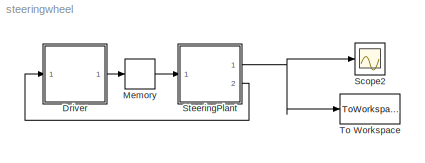
MODEL steeringwheel
KIND model
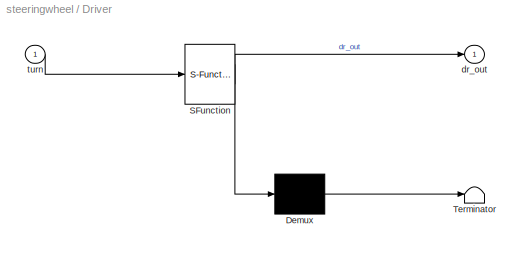
BLOCK [SubSystem] Driver
  ErrorFcn = Stateflow.Translate.translate
  PermitHierarchicalResolution = ExplicitOnly
  Ports = [1, 1]
  RequestExecContextInheritance = off
  SFBlockType = Chart
  SID = 26
  TreatAsAtomicUnit = on
BLOCK [Demux] Driver/ Demux 
  Outputs = 1
  Ports = [1, 1]
  SID = 26::90
BLOCK [S-Function] Driver/ SFunction 
  EnableBusSupport = on
  FunctionName = sf_sfun
  PortCounts = [1 2]
  Ports = [1, 2]
  SFcnIsStateOwnerBlock = off
  SFunctionDeploymentMode = off
  SID = 26::89
  Tag = Stateflow S-Function steeringwheel 1
BLOCK [Terminator] Driver/ Terminator 
  SID = 26::91
BLOCK [Outport] Driver/dr_out
  IconDisplay = Port number
  SID = 26::95
BLOCK [Inport] Driver/turn
  IconDisplay = Port number
  SID = 26::96
BLOCK [Memory] Memory
  SID = 27
BLOCK [Scope] Scope2
  Floating = off
  NumInputPorts = 1
  Ports = [1]
  SID = 6
  ScopeSpecificationString = Simulink.scopes.TimeScopeBlockCfg('CurrentConfiguration', extmgr.ConfigurationSet(extmgr.Configuration('Core','General UI',true),extmgr.Configuration('Core','Source UI',true),extmgr.Configuration('Sources','WiredSimulink',true,'DataLoggingVariableName','ScopeData2'),extmgr.Configuration('Visuals','Time Domain',true,'SerializedDisplays',{struct('MinYLimReal','-1.23881','MaxYLimReal','1.24876','YLab...<+1452ch>
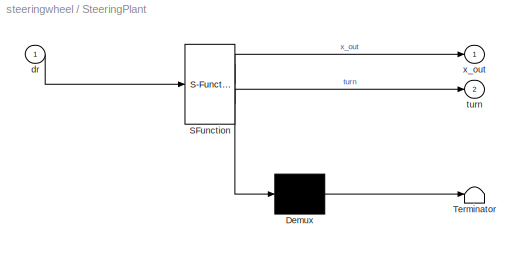
BLOCK [SubSystem] SteeringPlant
  ErrorFcn = Stateflow.Translate.translate
  PermitHierarchicalResolution = ExplicitOnly
  Ports = [1, 2]
  RequestExecContextInheritance = off
  SFBlockType = Chart
  SID = 5
  TreatAsAtomicUnit = on
BLOCK [Demux] SteeringPlant/ Demux 
  Outputs = 1
  Ports = [1, 1]
  SID = 5::90
BLOCK [S-Function] SteeringPlant/ SFunction 
  EnableBusSupport = on
  FunctionName = sf_sfun
  PortCounts = [1 3]
  Ports = [1, 3]
  SFcnIsStateOwnerBlock = off
  SFunctionDeploymentMode = off
  SID = 5::89
  Tag = Stateflow S-Function steeringwheel 2
BLOCK [Terminator] SteeringPlant/ Terminator 
  SID = 5::91
BLOCK [Inport] SteeringPlant/dr
  IconDisplay = Port number
  SID = 5::96
BLOCK [Outport] SteeringPlant/turn
  IconDisplay = Port number
  Port = 2
  SID = 5::97
BLOCK [Outport] SteeringPlant/x_out
  IconDisplay = Port number
  SID = 5::93
BLOCK [ToWorkspace] To Workspace
  FixptAsFi = on
  MaxDataPoints = inf
  Ports = [1]
  SID = 24
  SampleTime = -1
  Save2DSignal = 3-D array (concatenate along third dimension)
  SaveFormat = Timeseries
  VariableName = result
LINE Driver/ Demux :1 -> Driver/ Terminator :1
LINE Driver/ SFunction :1 -> Driver/ Demux :1
LINE Driver/ SFunction :2 -> Driver/dr_out:1
LINE Driver/turn:1 -> Driver/ SFunction :1
LINE Driver:1 -> Memory:1
LINE Memory:1 -> SteeringPlant:1
LINE SteeringPlant/ Demux :1 -> SteeringPlant/ Terminator :1
LINE SteeringPlant/ SFunction :1 -> SteeringPlant/ Demux :1
LINE SteeringPlant/ SFunction :2 -> SteeringPlant/x_out:1
LINE SteeringPlant/ SFunction :3 -> SteeringPlant/turn:1
LINE SteeringPlant/dr:1 -> SteeringPlant/ SFunction :1
NET SteeringPlant:1 -> Scope2:1, To Workspace:1
LINE SteeringPlant:2 -> Driver:1
note: NET lines group one-source signal fan-out (src -> all destinations, sorted); 1:1 wires keep LINE
CHART Driver states=2 transitions=3
  STATE_LABEL 'ConstLeftTurn\\ndu:\\ndr_out = -4;\\n'
  STATE_LABEL 'ConstRightTurn\\ndu:\\ndr_out = 0.1;'
CHART SteeringPlant states=2 transitions=3
  STATE_LABEL 'SteeringLeft\\ndu:\\nr_dot = dr;\\nx_out = cos(r);\\n'
  STATE_LABEL 'SteeringRight\\ndu:\\nr_dot = dr;\\nx_out = cos(r);'
